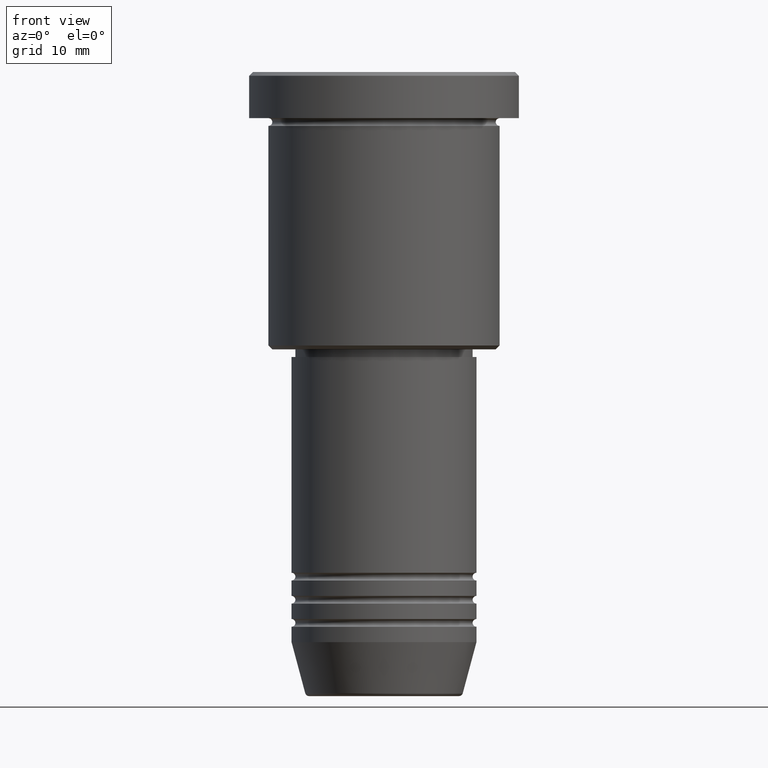
[diagram: clean part render]
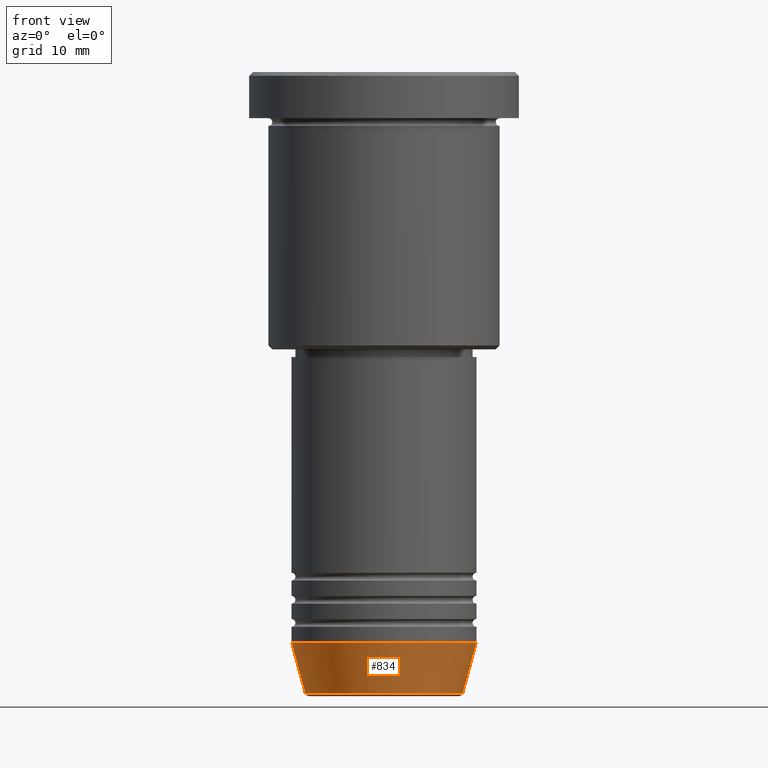
[diagram: same view with one face highlighted and labeled with its STEP entity id]
A machine part, front view. The second image highlights one B-rep face of the part: STEP entity #834.
In plain terms, the highlighted conical surface has half-angle 15 deg.
Its self-contained STEP definition (entity closure, byte-faithful):
#18 = EDGE_CURVE ( 'NONE', #1083, #335, #800, .T. ) ;
#19 = CARTESIAN_POINT ( 'NONE',  ( 12.00000000000000000, 0.000000000000000000, -74.00000000000000000 ) ) ;
#21 = CARTESIAN_POINT ( 'NONE',  ( 12.00000000000000000, 0.000000000000000000, -74.00000000000000000 ) ) ;
#27 = VECTOR ( 'NONE', #170, 1000.000000000000000 ) ;
#75 = DIRECTION ( 'NONE',  ( 1.000000000000000000, 0.000000000000000000, 0.000000000000000000 ) ) ;
#78 = CARTESIAN_POINT ( 'NONE',  ( -12.00000000000000000, 1.469576158976823947E-15, -74.00000000000000000 ) ) ;
#82 = EDGE_CURVE ( 'NONE', #335, #918, #275, .T. ) ;
#83 = CONICAL_SURFACE ( 'NONE', #730, 12.00000000000000000, 0.2617993877991500740 ) ;
#149 = LINE ( 'NONE', #898, #326 ) ;
#162 = CARTESIAN_POINT ( 'NONE',  ( 0.000000000000000000, 0.000000000000000000, -80.62940952255125637 ) ) ;
#170 = DIRECTION ( 'NONE',  ( 0.2588190451025213501, 0.000000000000000000, 0.9659258262890680902 ) ) ;
#183 = ORIENTED_EDGE ( 'NONE', *, *, #82, .T. ) ;
#229 = CARTESIAN_POINT ( 'NONE',  ( 10.22365507213718949, 0.000000000000000000, -80.62940952255125637 ) ) ;
#261 = CARTESIAN_POINT ( 'NONE',  ( -10.22365507213718949, 1.360806402472382744E-15, -80.62940952255125637 ) ) ;
#275 = LINE ( 'NONE', #21, #27 ) ;
#326 = VECTOR ( 'NONE', #810, 1000.000000000000000 ) ;
#335 = VERTEX_POINT ( 'NONE', #229 ) ;
#371 = ORIENTED_EDGE ( 'NONE', *, *, #1076, .F. ) ;
#499 = DIRECTION ( 'NONE',  ( 1.000000000000000000, 0.000000000000000000, 0.000000000000000000 ) ) ;
#590 = AXIS2_PLACEMENT_3D ( 'NONE', #162, #1061, #75 ) ;
#639 = ORIENTED_EDGE ( 'NONE', *, *, #18, .T. ) ;
#707 = AXIS2_PLACEMENT_3D ( 'NONE', #770, #1038, #499 ) ;
#730 = AXIS2_PLACEMENT_3D ( 'NONE', #896, #803, #1081 ) ;
#770 = CARTESIAN_POINT ( 'NONE',  ( 0.000000000000000000, 0.000000000000000000, -74.00000000000000000 ) ) ;
#800 = CIRCLE ( 'NONE', #590, 10.22365507213718949 ) ;
#803 = DIRECTION ( 'NONE',  ( -0.000000000000000000, -0.000000000000000000, 1.000000000000000000 ) ) ;
#810 = DIRECTION ( 'NONE',  ( -0.2588190451025213501, 3.169619151431772337E-17, 0.9659258262890680902 ) ) ;
#834 = ADVANCED_FACE ( 'NONE', ( #899 ), #83, .T. ) ;
#896 = CARTESIAN_POINT ( 'NONE',  ( 0.000000000000000000, 0.000000000000000000, -74.00000000000000000 ) ) ;
#898 = CARTESIAN_POINT ( 'NONE',  ( -12.00000000000000000, 1.469576158976823947E-15, -74.00000000000000000 ) ) ;
#899 = FACE_OUTER_BOUND ( 'NONE', #1004, .T. ) ;
#918 = VERTEX_POINT ( 'NONE', #19 ) ;
#954 = EDGE_CURVE ( 'NONE', #1021, #918, #1078, .T. ) ;
#1004 = EDGE_LOOP ( 'NONE', ( #371, #639, #183, #1014 ) ) ;
#1014 = ORIENTED_EDGE ( 'NONE', *, *, #954, .F. ) ;
#1021 = VERTEX_POINT ( 'NONE', #78 ) ;
#1038 = DIRECTION ( 'NONE',  ( -0.000000000000000000, -0.000000000000000000, 1.000000000000000000 ) ) ;
#1061 = DIRECTION ( 'NONE',  ( -0.000000000000000000, -0.000000000000000000, 1.000000000000000000 ) ) ;
#1076 = EDGE_CURVE ( 'NONE', #1083, #1021, #149, .T. ) ;
#1078 = CIRCLE ( 'NONE', #707, 12.00000000000000000 ) ;
#1081 = DIRECTION ( 'NONE',  ( 1.000000000000000000, 0.000000000000000000, 0.000000000000000000 ) ) ;
#1083 = VERTEX_POINT ( 'NONE', #261 ) ;